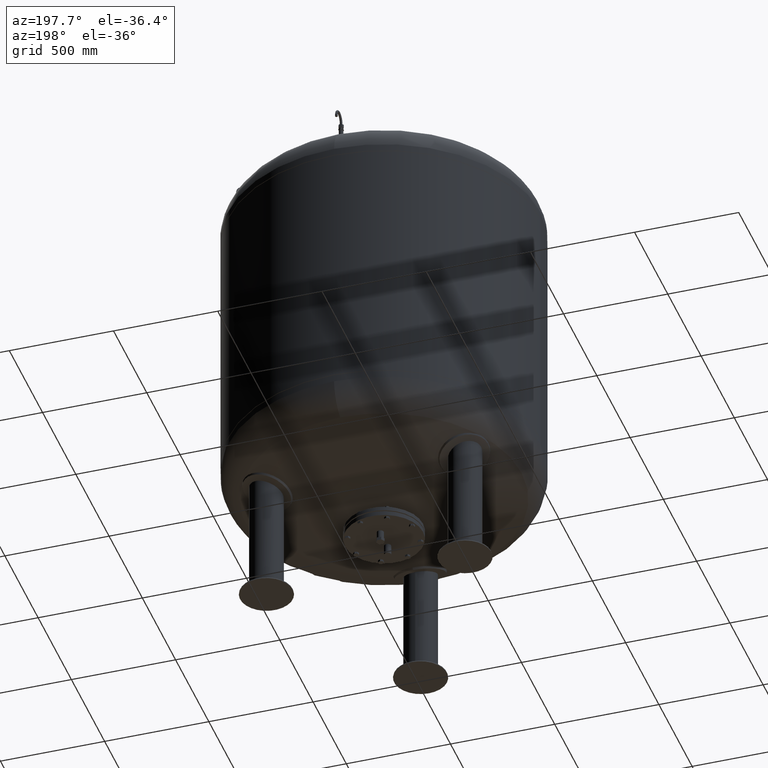
[diagram: clean part render]
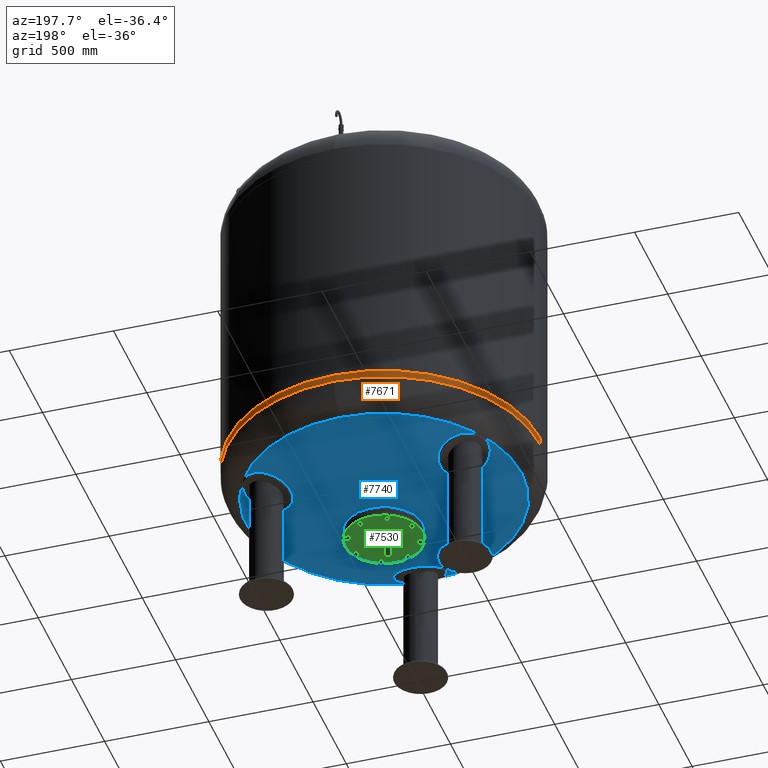
[diagram: same view with three faces highlighted in distinct colors, each labeled with its STEP entity id]
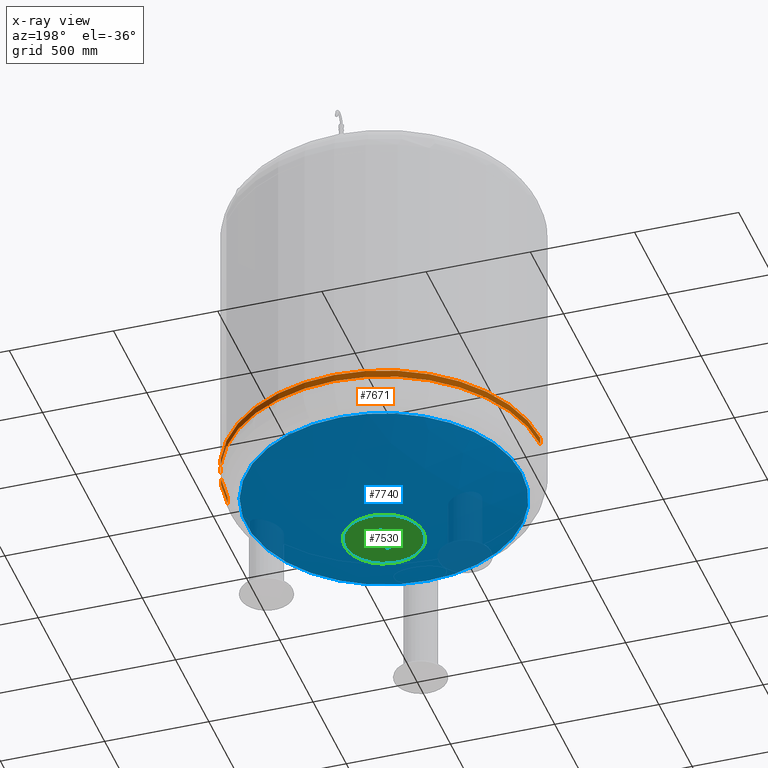
[diagram: x-ray of the same camera — body ghosted, the three highlighted faces saturated]
A machine part, auxiliary view with three faces highlighted in distinct colors.
The next image is the same camera in x-ray (body ghosted, the three faces saturated) — at least one of them is partly hidden behind the body in this view.
Their STEP definitions:

[orange] entity #7671 — the highlighted cylindrical surface (partial cylindrical patch) has radius 750 mm, axis along (-0, -0, 1).
#7621=CARTESIAN_POINT('',(-5.374415E-014,-5.742715E-014,802.618833707949080));
#7622=DIRECTION('',(-1.719159E-016,-1.836970E-016,1.0));
#7623=DIRECTION('',(-1.0,0.0,0.0));
#7624=AXIS2_PLACEMENT_3D('',#7621,#7622,#7623);
#7625=CYLINDRICAL_SURFACE('',#7624,750.0);
#7626=CARTESIAN_POINT('',(-750.0,-6.062002E-014,819.999999999999890));
#7627=VERTEX_POINT('',#7626);
#7628=CARTESIAN_POINT('',(-750.0,-5.423428E-014,785.237667415897930));
#7629=VERTEX_POINT('',#7628);
#7630=CARTESIAN_POINT('',(-750.0,-6.062002E-014,819.999999999999890));
#7631=DIRECTION('',(0.0,0.0,-1.0));
#7632=VECTOR('',#7631,34.762332584101955);
#7633=LINE('',#7630,#7632);
#7634=EDGE_CURVE('',#7627,#7629,#7633,.T.);
#7635=ORIENTED_EDGE('',*,*,#7634,.F.);
#7636=CARTESIAN_POINT('',(750.0,3.122546E-014,820.000000000000110));
#7637=VERTEX_POINT('',#7636);
#7638=CARTESIAN_POINT('',(-5.673224E-014,-6.062002E-014,820.0));
#7639=DIRECTION('',(0.0,0.0,1.0));
#7640=DIRECTION('',(-1.0,0.0,0.0));
#7641=AXIS2_PLACEMENT_3D('',#7638,#7639,#7640);
#7642=CIRCLE('',#7641,750.0);
#7643=EDGE_CURVE('',#7637,#7627,#7642,.T.);
#7644=ORIENTED_EDGE('',*,*,#7643,.F.);
#7645=CARTESIAN_POINT('',(750.0,3.761120E-014,785.237667415898160));
#7646=VERTEX_POINT('',#7645);
#7647=CARTESIAN_POINT('',(750.0,3.122546E-014,820.000000000000110));
#7648=DIRECTION('',(0.0,0.0,-1.0));
#7649=VECTOR('',#7648,34.762332584101955);
#7650=LINE('',#7647,#7649);
#7651=EDGE_CURVE('',#7637,#7646,#7650,.T.);
#7652=ORIENTED_EDGE('',*,*,#7651,.T.);
#7653=CARTESIAN_POINT('',(-1.628998E-013,750.0,785.237667415898270));
#7654=VERTEX_POINT('',#7653);
#7655=CARTESIAN_POINT('',(-5.075605E-014,-5.423428E-014,785.237667415898160));
#7656=DIRECTION('',(0.0,0.0,1.0));
#7657=DIRECTION('',(-1.0,0.0,0.0));
#7658=AXIS2_PLACEMENT_3D('',#7655,#7656,#7657);
#7659=CIRCLE('',#7658,750.0);
#7660=EDGE_CURVE('',#7646,#7654,#7659,.T.);
#7661=ORIENTED_EDGE('',*,*,#7660,.T.);
#7662=CARTESIAN_POINT('',(-5.075605E-014,-5.423428E-014,785.237667415898160));
#7663=DIRECTION('',(0.0,0.0,1.0));
#7664=DIRECTION('',(-1.0,0.0,0.0));
#7665=AXIS2_PLACEMENT_3D('',#7662,#7663,#7664);
#7666=CIRCLE('',#7665,750.0);
#7667=EDGE_CURVE('',#7654,#7629,#7666,.T.);
#7668=ORIENTED_EDGE('',*,*,#7667,.T.);
#7669=EDGE_LOOP('',(#7635,#7644,#7652,#7661,#7668));
#7670=FACE_OUTER_BOUND('',#7669,.T.);
#7671=ADVANCED_FACE('',(#7670),#7625,.T.);

[blue] entity #7740 — the highlighted spherical surface has radius 1509 mm.
#7679=CARTESIAN_POINT('',(-4.647817E-014,-660.606666666666800,642.283437133770350));
#7680=VERTEX_POINT('',#7679);
#7696=CARTESIAN_POINT('',(-1.273765E-013,660.606666666666800,642.283437133770800));
#7697=VERTEX_POINT('',#7696);
#7705=CARTESIAN_POINT('',(-660.606666666666800,-2.797401E-014,642.283437133770460));
#7706=VERTEX_POINT('',#7705);
#7707=CARTESIAN_POINT('',(-2.617994E-014,-2.797401E-014,642.283437133770580));
#7708=DIRECTION('',(0.0,0.0,1.0));
#7709=DIRECTION('',(-1.0,0.0,0.0));
#7710=AXIS2_PLACEMENT_3D('',#7707,#7708,#7709);
#7711=CIRCLE('',#7710,660.606666666666800);
#7712=EDGE_CURVE('',#7697,#7706,#7711,.T.);
#7714=CARTESIAN_POINT('',(-2.617994E-014,-2.797401E-014,642.283437133770580));
#7715=DIRECTION('',(0.0,0.0,1.0));
#7716=DIRECTION('',(-1.0,0.0,0.0));
#7717=AXIS2_PLACEMENT_3D('',#7714,#7715,#7716);
#7718=CIRCLE('',#7717,660.606666666666800);
#7719=EDGE_CURVE('',#7706,#7680,#7718,.T.);
#7724=CARTESIAN_POINT('',(-3.455040E-013,-2.771988E-013,1999.0));
#7725=DIRECTION('',(0.0,-1.0,0.0));
#7726=DIRECTION('',(1.0,0.0,0.0));
#7727=AXIS2_PLACEMENT_3D('',#7724,#7725,#7726);
#7728=SPHERICAL_SURFACE('',#7727,1509.0);
#7729=ORIENTED_EDGE('',*,*,#7719,.F.);
#7730=ORIENTED_EDGE('',*,*,#7712,.F.);
#7731=CARTESIAN_POINT('',(-2.617994E-014,-2.797401E-014,642.283437133770580));
#7732=DIRECTION('',(0.0,0.0,1.0));
#7733=DIRECTION('',(-1.0,0.0,0.0));
#7734=AXIS2_PLACEMENT_3D('',#7731,#7732,#7733);
#7735=CIRCLE('',#7734,660.606666666666800);
#7736=EDGE_CURVE('',#7680,#7697,#7735,.T.);
#7737=ORIENTED_EDGE('',*,*,#7736,.F.);
#7738=EDGE_LOOP('',(#7729,#7730,#7737));
#7739=FACE_OUTER_BOUND('',#7738,.T.);
#7740=ADVANCED_FACE('',(#7739),#7728,.T.);

[green] entity #7530 — the highlighted planar face has unit normal (0, 0, -1).
#6762=CARTESIAN_POINT('',(187.500000000000000,0.0,414.0));
#6763=VERTEX_POINT('',#6762);
#6772=CARTESIAN_POINT('',(-187.500000000000000,2.296137E-014,414.0));
#6773=VERTEX_POINT('',#6772);
#6774=CARTESIAN_POINT('',(0.0,0.0,414.0));
#6775=DIRECTION('',(0.0,0.0,-1.0));
#6776=DIRECTION('',(1.0,0.0,0.0));
#6777=AXIS2_PLACEMENT_3D('',#6774,#6775,#6776);
#6778=CIRCLE('',#6777,187.500000000000000);
#6779=EDGE_CURVE('',#6773,#6763,#6778,.T.);
#6932=CARTESIAN_POINT('',(-16.850000000000012,-55.0,414.0));
#6933=VERTEX_POINT('',#6932);
#6949=CARTESIAN_POINT('',(16.849999999999991,-55.0,414.0));
#6950=VERTEX_POINT('',#6949);
#6957=CARTESIAN_POINT('',(-1.201816E-014,-55.0,414.0));
#6958=DIRECTION('',(0.0,0.0,1.0));
#6959=DIRECTION('',(-1.0,0.0,0.0));
#6960=AXIS2_PLACEMENT_3D('',#6957,#6958,#6959);
#6961=CIRCLE('',#6960,16.850000000000001);
#6962=EDGE_CURVE('',#6933,#6950,#6961,.T.);
#6974=CARTESIAN_POINT('',(-16.849999999999994,55.0,414.0));
#6975=VERTEX_POINT('',#6974);
#6991=CARTESIAN_POINT('',(16.850000000000009,55.0,414.0));
#6992=VERTEX_POINT('',#6991);
#6999=CARTESIAN_POINT('',(5.780099E-015,55.0,414.0));
#7000=DIRECTION('',(0.0,0.0,1.0));
#7001=DIRECTION('',(-1.0,0.0,0.0));
#7002=AXIS2_PLACEMENT_3D('',#6999,#7000,#7001);
#7003=CIRCLE('',#7002,16.850000000000001);
#7004=EDGE_CURVE('',#6975,#6992,#7003,.T.);
#7315=CARTESIAN_POINT('',(5.780099E-015,55.0,414.0));
#7316=DIRECTION('',(0.0,0.0,1.0));
#7317=DIRECTION('',(-1.0,0.0,0.0));
#7318=AXIS2_PLACEMENT_3D('',#7315,#7316,#7317);
#7319=CIRCLE('',#7318,16.850000000000001);
#7320=EDGE_CURVE('',#6992,#6975,#7319,.T.);
#7333=CARTESIAN_POINT('',(-1.201816E-014,-55.0,414.0));
#7334=DIRECTION('',(0.0,0.0,1.0));
#7335=DIRECTION('',(-1.0,0.0,0.0));
#7336=AXIS2_PLACEMENT_3D('',#7333,#7334,#7335);
#7337=CIRCLE('',#7336,16.850000000000001);
#7338=EDGE_CURVE('',#6950,#6933,#7337,.T.);
#7503=CARTESIAN_POINT('',(0.0,0.0,414.0));
#7504=DIRECTION('',(0.0,0.0,-1.0));
#7505=DIRECTION('',(1.0,0.0,0.0));
#7506=AXIS2_PLACEMENT_3D('',#7503,#7504,#7505);
#7507=CIRCLE('',#7506,187.500000000000000);
#7508=EDGE_CURVE('',#6763,#6773,#7507,.T.);
#7513=CARTESIAN_POINT('',(93.750000000000000,0.0,414.0));
#7514=DIRECTION('',(0.0,0.0,-1.0));
#7515=DIRECTION('',(0.0,1.0,0.0));
#7516=AXIS2_PLACEMENT_3D('',#7513,#7514,#7515);
#7517=PLANE('',#7516);
#7518=ORIENTED_EDGE('',*,*,#7508,.T.);
#7519=ORIENTED_EDGE('',*,*,#6779,.T.);
#7520=EDGE_LOOP('',(#7518,#7519));
#7521=FACE_OUTER_BOUND('',#7520,.T.);
#7522=ORIENTED_EDGE('',*,*,#7320,.T.);
#7523=ORIENTED_EDGE('',*,*,#7004,.T.);
#7524=EDGE_LOOP('',(#7522,#7523));
#7525=FACE_BOUND('',#7524,.T.);
#7526=ORIENTED_EDGE('',*,*,#7338,.T.);
#7527=ORIENTED_EDGE('',*,*,#6962,.T.);
#7528=EDGE_LOOP('',(#7526,#7527));
#7529=FACE_BOUND('',#7528,.T.);
#7530=ADVANCED_FACE('',(#7521,#7525,#7529),#7517,.T.);